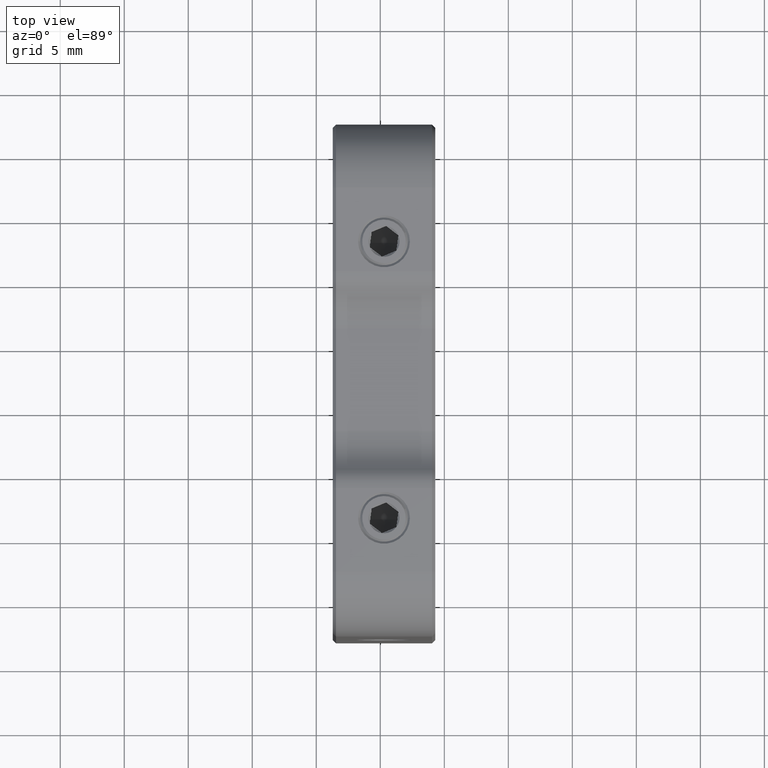
[diagram: clean part render]
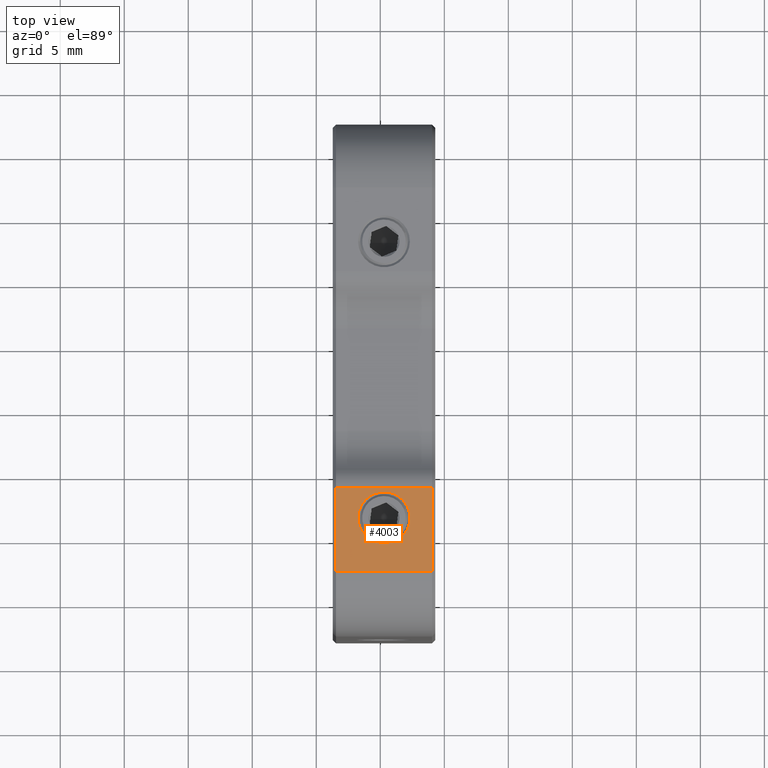
[diagram: same view with one face highlighted and labeled with its STEP entity id]
A machine part, top view. The second image highlights one B-rep face of the part: STEP entity #4003.
In plain terms, the highlighted planar face has unit normal (0, 0, -1).
Its self-contained STEP definition (entity closure, byte-faithful):
#8 = CARTESIAN_POINT ( 'NONE',  ( -18.45960063692994879, -6.362834731590468529, 60.00000000000001421 ) ) ;
#754 = DIRECTION ( 'NONE',  ( -0.000000000000000000, -0.000000000000000000, 1.000000000000000000 ) ) ;
#767 = CARTESIAN_POINT ( 'NONE',  ( -16.73460063692994737, -8.690698776590892294, 60.00000000000001421 ) ) ;
#1270 = DIRECTION ( 'NONE',  ( 1.000000000000000000, 0.000000000000000000, 0.000000000000000000 ) ) ;
#1521 = PLANE ( 'NONE',  #5102 ) ;
#1526 = ORIENTED_EDGE ( 'NONE', *, *, #6917, .T. ) ;
#1565 = LINE ( 'NONE', #9228, #3606 ) ;
#1639 = VECTOR ( 'NONE', #5160, 1000.000000000000000 ) ;
#1987 = CARTESIAN_POINT ( 'NONE',  ( -14.70960063692994879, -8.690698776590892294, 60.00000000000001421 ) ) ;
#2124 = VECTOR ( 'NONE', #4912, 1000.000000000000000 ) ;
#2136 = EDGE_LOOP ( 'NONE', ( #8761, #2829 ) ) ;
#2137 = EDGE_CURVE ( 'NONE', #2847, #6321, #6012, .T. ) ;
#2192 = ORIENTED_EDGE ( 'NONE', *, *, #7120, .T. ) ;
#2268 = EDGE_LOOP ( 'NONE', ( #1526, #3425, #2192, #6458 ) ) ;
#2483 = EDGE_CURVE ( 'NONE', #5521, #6432, #5898, .T. ) ;
#2641 = CARTESIAN_POINT ( 'NONE',  ( -10.95960063692994879, -6.362834731590468529, 60.00000000000001421 ) ) ;
#2829 = ORIENTED_EDGE ( 'NONE', *, *, #2137, .F. ) ;
#2847 = VERTEX_POINT ( 'NONE', #767 ) ;
#3004 = VECTOR ( 'NONE', #7737, 1000.000000000000000 ) ;
#3425 = ORIENTED_EDGE ( 'NONE', *, *, #2483, .T. ) ;
#3606 = VECTOR ( 'NONE', #4170, 1000.000000000000000 ) ;
#3698 = VERTEX_POINT ( 'NONE', #6441 ) ;
#3777 = DIRECTION ( 'NONE',  ( 0.000000000000000000, 8.673617379884035472E-17, -1.000000000000000000 ) ) ;
#3850 = LINE ( 'NONE', #4184, #2124 ) ;
#3960 = CARTESIAN_POINT ( 'NONE',  ( -18.45960063692994879, 22.10930122340910842, 60.00000000000001421 ) ) ;
#4003 = ADVANCED_FACE ( 'NONE', ( #6485, #6241 ), #1521, .F. ) ;
#4170 = DIRECTION ( 'NONE',  ( 1.000000000000000000, -0.000000000000000000, -0.000000000000000000 ) ) ;
#4184 = CARTESIAN_POINT ( 'NONE',  ( -10.95960063692994879, -6.362834731590468529, 60.00000000000001421 ) ) ;
#4324 = CARTESIAN_POINT ( 'NONE',  ( -12.68460063692995021, -8.690698776590892294, 60.00000000000001421 ) ) ;
#4488 = CARTESIAN_POINT ( 'NONE',  ( -10.70960063692994879, 22.10930122340910842, 60.00000000000001421 ) ) ;
#4912 = DIRECTION ( 'NONE',  ( 0.000000000000000000, 1.000000000000000000, 8.673617379884035472E-17 ) ) ;
#5102 = AXIS2_PLACEMENT_3D ( 'NONE', #4488, #3777, #5208 ) ;
#5160 = DIRECTION ( 'NONE',  ( -1.000000000000000000, 0.000000000000000000, 0.000000000000000000 ) ) ;
#5208 = DIRECTION ( 'NONE',  ( 0.000000000000000000, 1.000000000000000000, 8.673617379884035472E-17 ) ) ;
#5443 = EDGE_CURVE ( 'NONE', #6321, #2847, #7797, .T. ) ;
#5521 = VERTEX_POINT ( 'NONE', #8 ) ;
#5797 = VERTEX_POINT ( 'NONE', #2641 ) ;
#5898 = LINE ( 'NONE', #3960, #3004 ) ;
#6012 = CIRCLE ( 'NONE', #8081, 2.024999999999999023 ) ;
#6241 = FACE_OUTER_BOUND ( 'NONE', #2268, .T. ) ;
#6321 = VERTEX_POINT ( 'NONE', #4324 ) ;
#6432 = VERTEX_POINT ( 'NONE', #6932 ) ;
#6441 = CARTESIAN_POINT ( 'NONE',  ( -10.95960063692994879, -12.89069877659089691, 60.00000000000001421 ) ) ;
#6458 = ORIENTED_EDGE ( 'NONE', *, *, #6710, .T. ) ;
#6485 = FACE_BOUND ( 'NONE', #2136, .T. ) ;
#6507 = DIRECTION ( 'NONE',  ( -0.000000000000000000, -0.000000000000000000, 1.000000000000000000 ) ) ;
#6710 = EDGE_CURVE ( 'NONE', #3698, #5797, #3850, .T. ) ;
#6917 = EDGE_CURVE ( 'NONE', #5797, #5521, #8024, .T. ) ;
#6932 = CARTESIAN_POINT ( 'NONE',  ( -18.45960063692994879, -12.89069877659089691, 60.00000000000001421 ) ) ;
#7120 = EDGE_CURVE ( 'NONE', #6432, #3698, #1565, .T. ) ;
#7250 = AXIS2_PLACEMENT_3D ( 'NONE', #7448, #754, #9552 ) ;
#7448 = CARTESIAN_POINT ( 'NONE',  ( -14.70960063692994879, -8.690698776590892294, 60.00000000000001421 ) ) ;
#7737 = DIRECTION ( 'NONE',  ( 0.000000000000000000, -1.000000000000000000, -8.673617379884035472E-17 ) ) ;
#7797 = CIRCLE ( 'NONE', #7250, 2.024999999999999023 ) ;
#8024 = LINE ( 'NONE', #8882, #1639 ) ;
#8081 = AXIS2_PLACEMENT_3D ( 'NONE', #1987, #6507, #1270 ) ;
#8761 = ORIENTED_EDGE ( 'NONE', *, *, #5443, .F. ) ;
#8882 = CARTESIAN_POINT ( 'NONE',  ( -10.70960063692994879, -6.362834731590468529, 60.00000000000001421 ) ) ;
#9228 = CARTESIAN_POINT ( 'NONE',  ( -10.70960063692994879, -12.89069877659089691, 60.00000000000001421 ) ) ;
#9552 = DIRECTION ( 'NONE',  ( 1.000000000000000000, 0.000000000000000000, 0.000000000000000000 ) ) ;